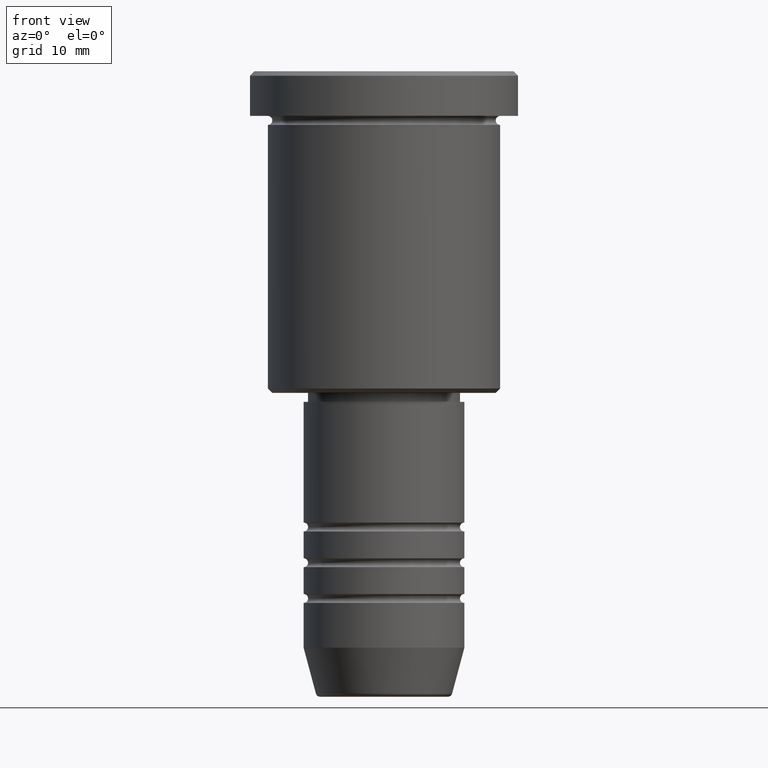
[diagram: clean part render]
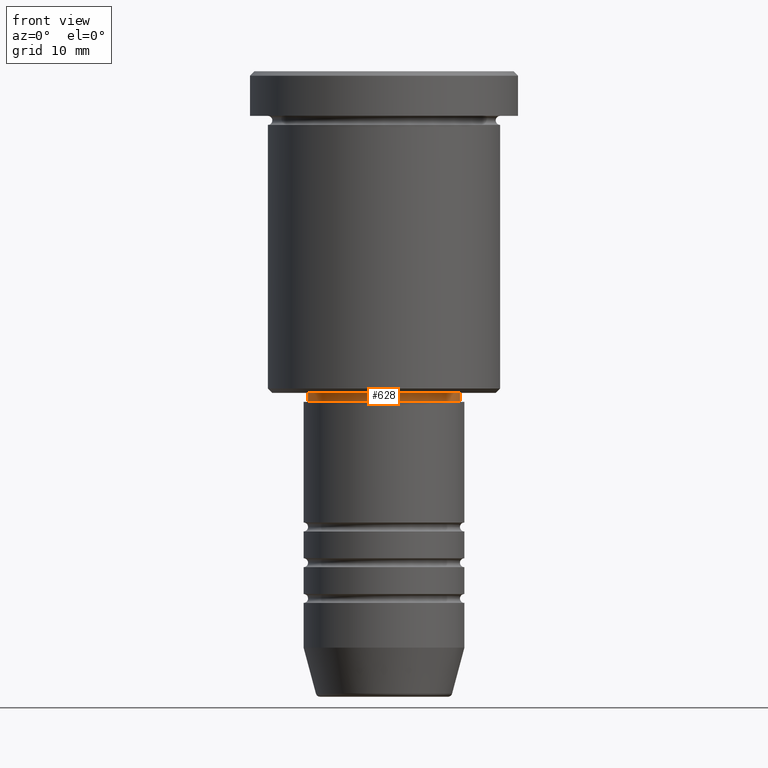
[diagram: same view with one face highlighted and labeled with its STEP entity id]
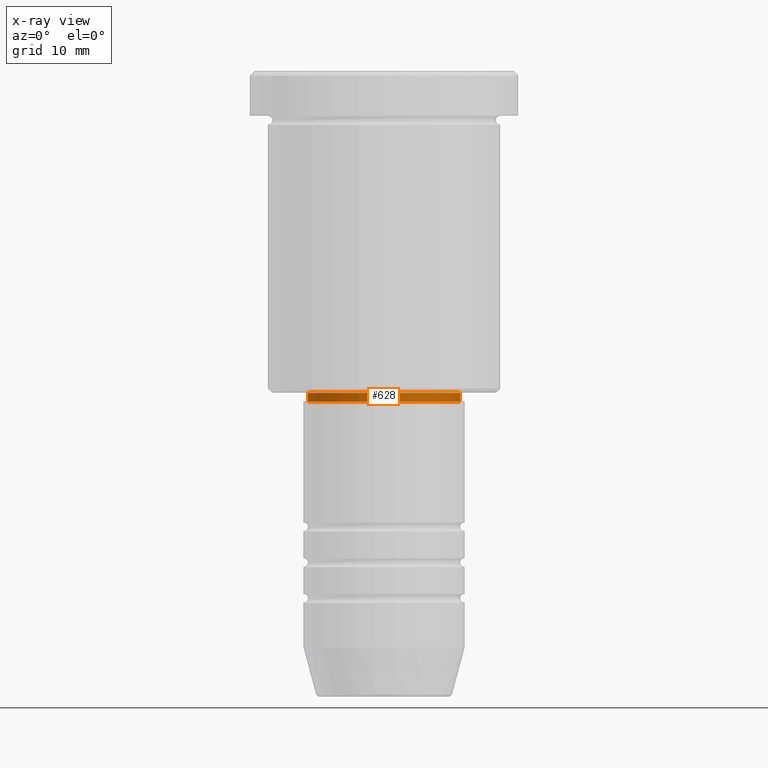
[diagram: x-ray of the same camera — body ghosted, the highlighted face saturated]
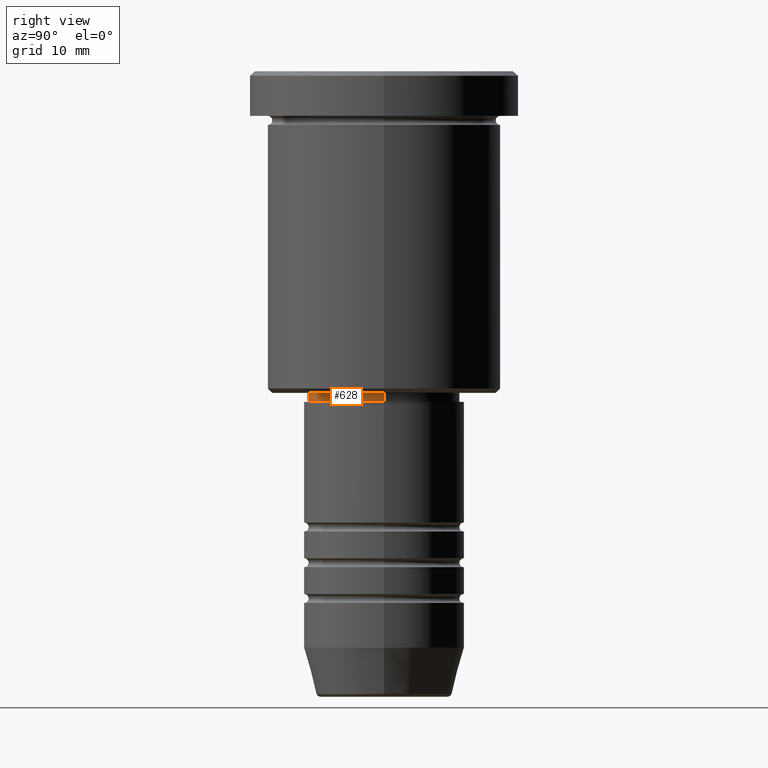
[diagram: same view with one face highlighted and labeled with its STEP entity id]
A machine part, front view. The second image highlights one B-rep face of the part: STEP entity #628.
The next image is the same camera in x-ray: the body ghosted, the highlighted face saturated — about 0% of this face is hidden behind the body in this view.
A second angle (right view) of the same face is appended — the face is thin or edge-on in the first view.
In plain terms, the highlighted cylindrical surface (partial cylindrical patch) has radius 8.5 mm, axis along (-0, -0, 1).
Its self-contained STEP definition (entity closure, byte-faithful):
#26 = ORIENTED_EDGE ( 'NONE', *, *, #345, .F. ) ;
#37 = CARTESIAN_POINT ( 'NONE',  ( 8.499999999999998224, 0.000000000000000000, -37.00000000000000711 ) ) ;
#62 = DIRECTION ( 'NONE',  ( -0.000000000000000000, -0.000000000000000000, 1.000000000000000000 ) ) ;
#80 = AXIS2_PLACEMENT_3D ( 'NONE', #743, #1093, #95 ) ;
#95 = DIRECTION ( 'NONE',  ( 1.000000000000000000, 0.000000000000000000, 0.000000000000000000 ) ) ;
#112 = ORIENTED_EDGE ( 'NONE', *, *, #714, .T. ) ;
#115 = VERTEX_POINT ( 'NONE', #442 ) ;
#200 = EDGE_CURVE ( 'NONE', #640, #115, #522, .T. ) ;
#235 = DIRECTION ( 'NONE',  ( 1.000000000000000000, 0.000000000000000000, 0.000000000000000000 ) ) ;
#246 = FACE_OUTER_BOUND ( 'NONE', #1116, .T. ) ;
#342 = CARTESIAN_POINT ( 'NONE',  ( 8.500000000000000000, 0.000000000000000000, -36.00000000000000000 ) ) ;
#345 = EDGE_CURVE ( 'NONE', #115, #1024, #604, .T. ) ;
#351 = ORIENTED_EDGE ( 'NONE', *, *, #468, .T. ) ;
#422 = DIRECTION ( 'NONE',  ( -0.000000000000000000, -0.000000000000000000, 1.000000000000000000 ) ) ;
#433 = CARTESIAN_POINT ( 'NONE',  ( -8.499999999999998224, 1.040949779275249943E-15, -37.00000000000000711 ) ) ;
#441 = DIRECTION ( 'NONE',  ( -0.000000000000000000, -0.000000000000000000, 1.000000000000000000 ) ) ;
#442 = CARTESIAN_POINT ( 'NONE',  ( -8.500000000000000000, 1.040949779275250140E-15, -36.00000000000000000 ) ) ;
#468 = EDGE_CURVE ( 'NONE', #640, #830, #564, .T. ) ;
#522 = LINE ( 'NONE', #878, #915 ) ;
#547 = VECTOR ( 'NONE', #1179, 1000.000000000000000 ) ;
#560 = LINE ( 'NONE', #914, #547 ) ;
#564 = CIRCLE ( 'NONE', #1132, 8.499999999999998224 ) ;
#604 = CIRCLE ( 'NONE', #80, 8.500000000000000000 ) ;
#615 = CARTESIAN_POINT ( 'NONE',  ( 0.000000000000000000, 0.000000000000000000, 0.000000000000000000 ) ) ;
#628 = ADVANCED_FACE ( 'NONE', ( #246 ), #1057, .T. ) ;
#640 = VERTEX_POINT ( 'NONE', #433 ) ;
#714 = EDGE_CURVE ( 'NONE', #830, #1024, #560, .T. ) ;
#743 = CARTESIAN_POINT ( 'NONE',  ( 0.000000000000000000, 0.000000000000000000, -36.00000000000000000 ) ) ;
#830 = VERTEX_POINT ( 'NONE', #37 ) ;
#852 = ORIENTED_EDGE ( 'NONE', *, *, #200, .F. ) ;
#854 = DIRECTION ( 'NONE',  ( 1.000000000000000000, 0.000000000000000000, 0.000000000000000000 ) ) ;
#878 = CARTESIAN_POINT ( 'NONE',  ( -8.500000000000000000, 1.040949779275250140E-15, 0.000000000000000000 ) ) ;
#914 = CARTESIAN_POINT ( 'NONE',  ( 8.500000000000000000, 0.000000000000000000, 0.000000000000000000 ) ) ;
#915 = VECTOR ( 'NONE', #62, 1000.000000000000000 ) ;
#1020 = CARTESIAN_POINT ( 'NONE',  ( 0.000000000000000000, 0.000000000000000000, -37.00000000000000711 ) ) ;
#1024 = VERTEX_POINT ( 'NONE', #342 ) ;
#1057 = CYLINDRICAL_SURFACE ( 'NONE', #1114, 8.500000000000000000 ) ;
#1093 = DIRECTION ( 'NONE',  ( -0.000000000000000000, -0.000000000000000000, 1.000000000000000000 ) ) ;
#1114 = AXIS2_PLACEMENT_3D ( 'NONE', #615, #441, #235 ) ;
#1116 = EDGE_LOOP ( 'NONE', ( #852, #351, #112, #26 ) ) ;
#1132 = AXIS2_PLACEMENT_3D ( 'NONE', #1020, #422, #854 ) ;
#1179 = DIRECTION ( 'NONE',  ( -0.000000000000000000, -0.000000000000000000, 1.000000000000000000 ) ) ;